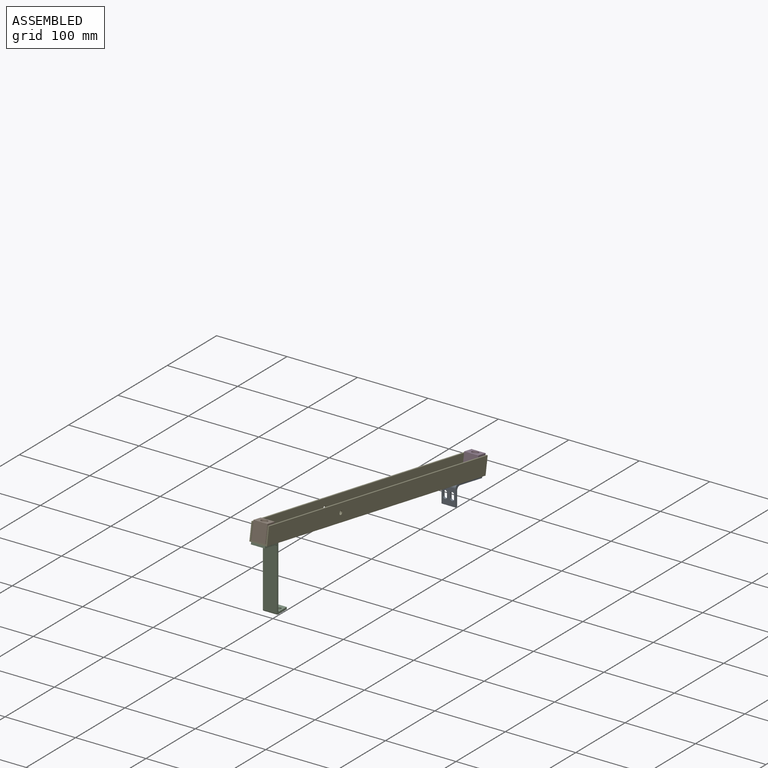
[diagram: assembled view]
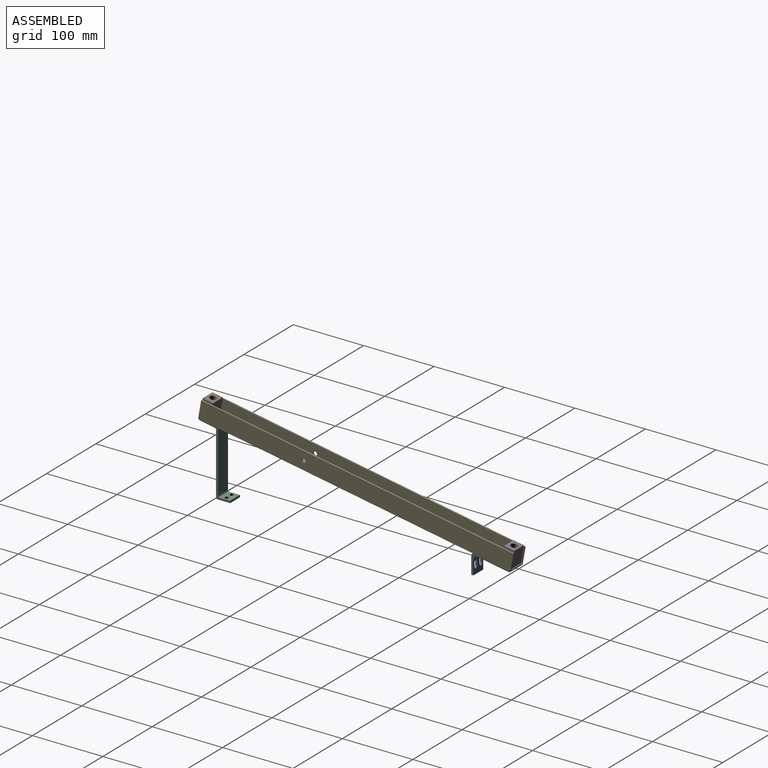
[diagram: assembled view, second angle]
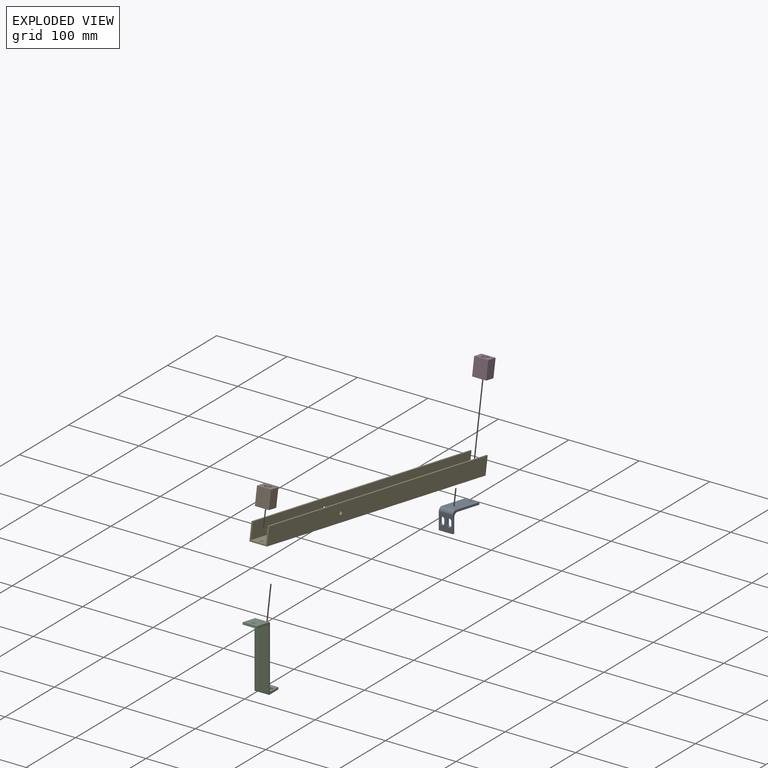
[diagram: exploded view]
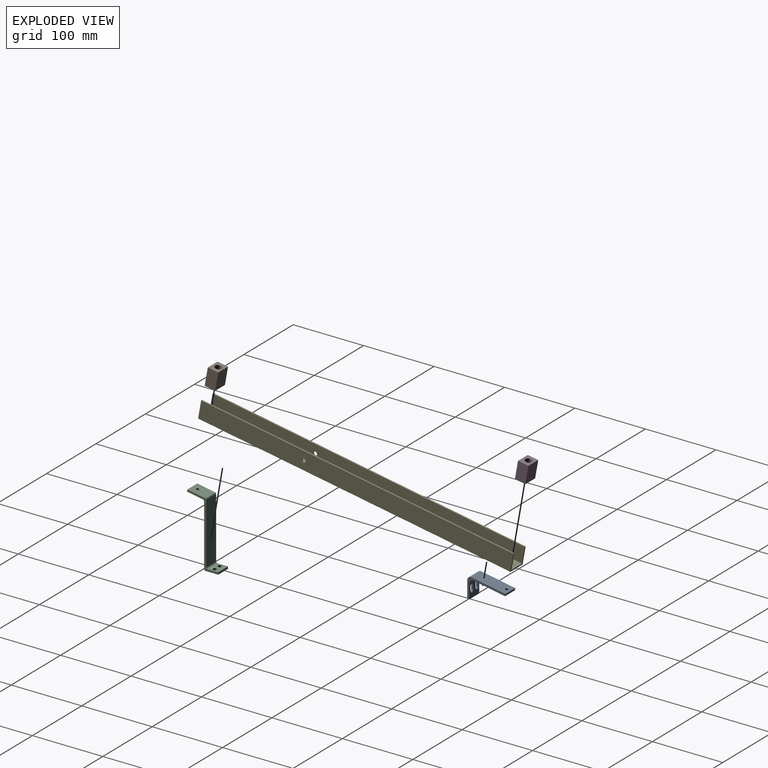
[diagram: exploded view, second angle]
ASSEMBLY  parts=5 mates=4
PART A: 19 faces, bbox 20x54.2x29 mm
  f0: plane 24.04x20mm, normal (0,-1,0), area 367.3mm2, adj f2,f3,f4,f10,f11,f12,f13,f14
  f1: plane 20.47x20mm, normal (0,1,0), area 295.8mm2, adj f2,f3,f5,f10,f11,f12,f13,f14
  f2: plane 54.16x29.04mm, normal (1,0,0), area 244.3mm2, adj f0,f1,f4,f5,f6,f7,f8,f18
  f3: plane 54.16x29.04mm, normal (-1,0,0), area 244.3mm2, adj f0,f1,f4,f5,f6,f7,f8,f18
  f4: cylinder r=5mm len=20mm, axis (-1,0,0), area 174.5mm2, adj f0,f2,f3,f8
  f5: cylinder r=5mm len=20mm, axis (-1,0,0), area 174.5mm2, adj f1,f2,f3,f6
  f6: plane 44.78x20mm, normal (0,-0.17,-0.98), area 895.5mm2, adj f2,f3,f5,f7,f9
  f7: plane 20x2.95mm, normal (0,0.98,-0.17), area 60mm2, adj f2,f3,f6,f8
  f8: plane 48.3x20mm, normal (0,0.17,0.98), area 967mm2, adj f2,f3,f4,f7,f9
  f9: cylinder r=2.1mm len=4.66mm, axis (0,0.17,0.98), area 39.6mm2, adj f6,f8
  f10: plane 6x3mm, normal (1,0,0), area 18mm2, adj f0,f1,f11,f13
  f11: cylinder r=2.75mm len=5.5mm, axis (0,-1,0), area 25.9mm2, adj f0,f1,f10,f12
  f12: plane 6x3mm, normal (-1,0,0), area 18mm2, adj f0,f1,f11,f13
  f13: cylinder r=2.75mm len=5.5mm, axis (0,-1,0), area 25.9mm2, adj f0,f1,f10,f12
  f14: plane 6x3mm, normal (1,0,0), area 18mm2, adj f0,f1,f15,f17
  f15: cylinder r=2.75mm len=5.5mm, axis (0,-1,0), area 25.9mm2, adj f0,f1,f14,f16
  f16: plane 6x3mm, normal (-1,0,0), area 18mm2, adj f0,f1,f15,f17
  f17: cylinder r=2.75mm len=5.5mm, axis (0,-1,0), area 25.9mm2, adj f0,f1,f14,f16
  f18: plane 20x3mm, normal (0,0,-1), area 60mm2, adj f0,f1,f2,f3
PART B: 9 faces, bbox 20x15x25 mm
  f0: plane 25x20mm, normal (0,1,0), area 500mm2, adj f1,f3,f4,f5
  f1: plane 25x15mm, normal (-1,0,0), area 375mm2, adj f0,f2,f4,f5
  f2: plane 25x20mm, normal (0,-1,0), area 500mm2, adj f1,f3,f4,f5
  f3: plane 25x15mm, normal (1,0,0), area 375mm2, adj f0,f2,f4,f5
  f4: plane 20x15mm, normal (0,0,1), area 229.1mm2, adj f0,f1,f2,f3,f8
  f5: plane 20x15mm, normal (0,0,-1), area 276.2mm2, adj f0,f1,f2,f3,f6
  f6: cylinder r=2.75mm len=19.5mm, axis (0,0,1), area 336.9mm2, adj f5,f7
  f7: plane 9.5x9.5mm, normal (0,0,1), area 47.1mm2, adj f6,f8
  f8: cylinder r=4.75mm len=9.5mm, axis (0,0,1), area 164.1mm2, adj f4,f7
PART C: 17 faces, bbox 20x44.3x97.7 mm
  f0: plane 20x3mm, normal (0,1,0), area 60mm2, adj f1,f3,f4,f5
  f1: plane 97.72x44.27mm, normal (-1,0,0), area 403.9mm2, adj f0,f2,f4,f5,f6,f7,f8,f9
  f2: plane 86.8x20mm, normal (0,-1,0), area 1736.1mm2, adj f1,f3,f10,f13
  f3: plane 97.72x44.27mm, normal (1,0,0), area 403.9mm2, adj f0,f2,f4,f5,f6,f7,f8,f9
  f4: plane 20x15mm, normal (0,0,1), area 252.5mm2, adj f0,f1,f3,f12,f15,f16
  f5: plane 20x18mm, normal (0,0,-1), area 312.5mm2, adj f0,f1,f3,f13,f15,f16
  f6: plane 22.61x20mm, normal (0,-0.17,-0.98), area 445.4mm2, adj f1,f3,f7,f10,f14
  f7: plane 20x2.95mm, normal (0,-0.98,0.17), area 60mm2, adj f1,f3,f6,f8
  f8: plane 25.09x20mm, normal (0,0.17,0.98), area 495.7mm2, adj f1,f3,f7,f11,f14
  f9: plane 86.32x20mm, normal (0,1,0), area 1726.4mm2, adj f1,f3,f11,f12
  f10: cylinder r=2mm len=20mm, axis (-1,0,0), area 55.9mm2, adj f1,f2,f3,f6
  f11: cylinder r=2mm len=20mm, axis (1,0,0), area 55.9mm2, adj f1,f3,f8,f9
  f12: cylinder r=2mm len=20mm, axis (-1,0,0), area 62.8mm2, adj f1,f3,f4,f9
  f13: cylinder r=2mm len=20mm, axis (1,0,0), area 62.8mm2, adj f1,f2,f3,f5
  f14: cylinder r=2.1mm len=4.66mm, axis (0,0.17,0.98), area 39.6mm2, adj f6,f8
  f15: cylinder r=2.75mm len=5.5mm, axis (0,0,-1), area 51.8mm2, adj f4,f5
  f16: cylinder r=2.75mm len=5.5mm, axis (0,0,-1), area 51.8mm2, adj f4,f5
PART D: same geometry as B
PART E: 22 faces, bbox 25x25x450 mm
  f0: cylinder r=2.75mm len=5.5mm, axis (0,1,0), area 34.6mm2, adj f2,f6
  f1: cylinder r=2.75mm len=5.5mm, axis (0,-1,0), area 34.6mm2, adj f9,f13
  f2: plane 450x24.4mm, normal (0,1,0), area 10956.2mm2, adj f0,f3,f15,f16,f17
  f3: cylinder r=0.3mm len=450mm, axis (0,0,1), area 212.1mm2, adj f2,f4,f15,f17
  f4: plane 450x1.4mm, normal (1,0,0), area 630mm2, adj f3,f5,f15,f17
  f5: cylinder r=0.3mm len=450mm, axis (0,0,1), area 212.1mm2, adj f4,f6,f15,f17
  f6: plane 450x22.4mm, normal (0,-1,0), area 10056.2mm2, adj f0,f5,f7,f15,f17
  f7: cylinder r=0.3mm len=450mm, axis (0,0,1), area 212.1mm2, adj f6,f14,f15,f17
  f8: cylinder r=0.3mm len=450mm, axis (0,0,1), area 212.1mm2, adj f9,f14,f15,f17
  f9: plane 450x22.4mm, normal (0,1,0), area 10056.2mm2, adj f1,f8,f10,f15,f17
  f10: cylinder r=0.3mm len=450mm, axis (0,0,1), area 212.1mm2, adj f9,f11,f15,f17
  f11: plane 450x1.4mm, normal (1,0,0), area 630mm2, adj f10,f12,f15,f17
  f12: cylinder r=0.3mm len=450mm, axis (0,0,1), area 212.1mm2, adj f11,f13,f15,f17
  f13: plane 450x24.4mm, normal (0,-1,0), area 10956.2mm2, adj f1,f12,f15,f17,f18
  f14: plane 450x20.4mm, normal (1,0,0), area 9132.5mm2, adj f7,f8,f15,f17,f19,f20
  f15: plane 25x25mm, normal (0,0,1), area 141.9mm2, adj f2,f3,f4,f5,f6,f7,f8,f9
  f16: cylinder r=0.3mm len=450mm, axis (0,0,1), area 212.1mm2, adj f2,f15,f17,f21
  f17: plane 25x25mm, normal (0,0,-1), area 141.9mm2, adj f2,f3,f4,f5,f6,f7,f8,f9
  f18: cylinder r=0.3mm len=450mm, axis (0,0,1), area 212.1mm2, adj f13,f15,f17,f21
  f19: cylinder r=2.75mm len=5.5mm, axis (-1,0,0), area 34.6mm2, adj f14,f21
  f20: cylinder r=2.75mm len=5.5mm, axis (-1,0,0), area 34.6mm2, adj f14,f21
  f21: plane 450x24.4mm, normal (-1,0,0), area 10932.5mm2, adj f15,f16,f17,f18,f19,f20
PLACE A t=(205.72,370.38,-91.54)mm
PLACE B rot(axis=(-1,0,0),10deg) t=(178.67,-122.98,23.49)mm
PLACE C t=(176.93,-78.82,-81.19)mm
PLACE D rot(axis=(-1,0,0),10deg) t=(178.67,304.42,-51.87)mm
PLACE E rot(axis=(0.54,-0.54,0.64),114.4deg) t=(228.22,-95.02,16.53)mm
MATE fastened B.f6 <-> E.f20  axis (0,-0.17,-0.98) through (215.72,-86.8,17.11)mm
MATE fastened D.f6 <-> E.f19  axis (0,0.17,0.98) through (215.72,340.61,-58.26)mm
MATE fastened A.f9 <-> E.f19  axis (0,0.17,0.98) through (215.72,340.26,-60.23)mm
MATE fastened E.f20 <-> C.f14  axis (0,-0.17,-0.98) through (215.72,-87.14,15.14)mm
